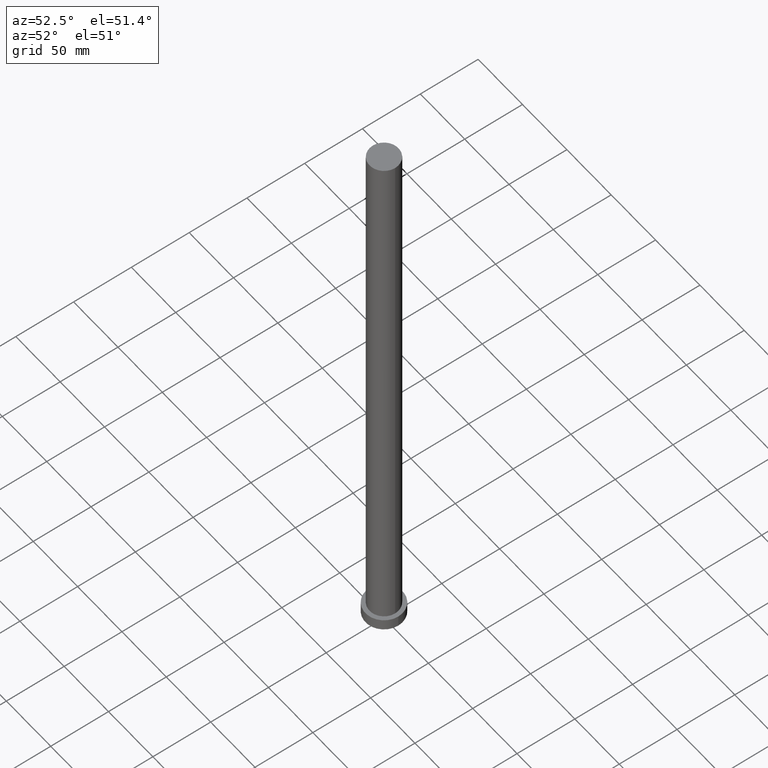
[diagram: clean part render]
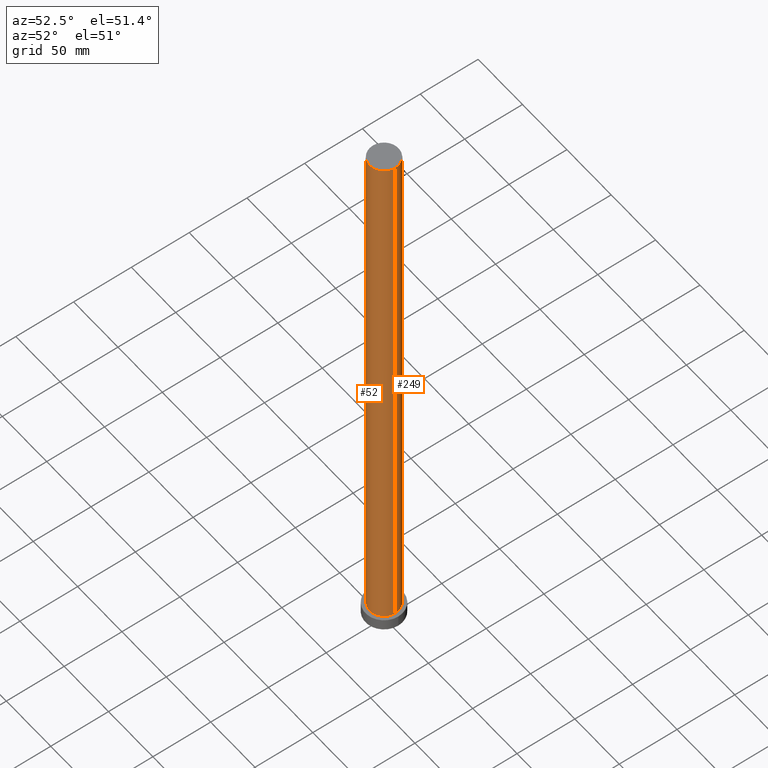
[diagram: same view with one multi-face feature highlighted, each face labeled with its STEP entity id]
A machine part, auxiliary view. The highlighted faces form ONE feature: a constant-radius fillet chain: 2 tangent blend faces with common blend radius 12.5 mm. The faces share edges in the B-rep.
Their STEP definitions:
[1] entity #52 (Cylinder):
#10 = AXIS2_PLACEMENT_3D ( 'NONE', #244, #221, #129 ) ;
#13 = EDGE_CURVE ( 'NONE', #17, #38, #29, .T. ) ;
#15 = ORIENTED_EDGE ( 'NONE', *, *, #121, .F. ) ;
#17 = VERTEX_POINT ( 'NONE', #146 ) ;
#19 = DIRECTION ( 'NONE',  ( -0.000000000000000000, -0.000000000000000000, -1.000000000000000000 ) ) ;
#21 = FACE_OUTER_BOUND ( 'NONE', #27, .T. ) ;
#27 = EDGE_LOOP ( 'NONE', ( #209, #15, #103, #149 ) ) ;
#29 = CIRCLE ( 'NONE', #10, 12.50000000000000000 ) ;
#38 = VERTEX_POINT ( 'NONE', #229 ) ;
#44 = CARTESIAN_POINT ( 'NONE',  ( 12.50000000000000000, 1.530808498934191521E-15, 500.0000000000000000 ) ) ;
#47 = AXIS2_PLACEMENT_3D ( 'NONE', #83, #19, #163 ) ;
#52 = ADVANCED_FACE ( 'NONE', ( #21 ), #212, .T. ) ;
#55 = EDGE_CURVE ( 'NONE', #148, #17, #220, .T. ) ;
#62 = LINE ( 'NONE', #44, #145 ) ;
#80 = AXIS2_PLACEMENT_3D ( 'NONE', #162, #195, #230 ) ;
#83 = CARTESIAN_POINT ( 'NONE',  ( 0.000000000000000000, 0.000000000000000000, 500.0000000000000000 ) ) ;
#85 = CARTESIAN_POINT ( 'NONE',  ( -12.50000000000000000, 0.000000000000000000, 500.0000000000000000 ) ) ;
#103 = ORIENTED_EDGE ( 'NONE', *, *, #55, .T. ) ;
#110 = CARTESIAN_POINT ( 'NONE',  ( 12.50000000000000000, 1.530808498934191521E-15, 500.0000000000000000 ) ) ;
#121 = EDGE_CURVE ( 'NONE', #148, #152, #160, .T. ) ;
#129 = DIRECTION ( 'NONE',  ( 1.000000000000000000, 0.000000000000000000, 0.000000000000000000 ) ) ;
#139 = EDGE_CURVE ( 'NONE', #152, #38, #62, .T. ) ;
#145 = VECTOR ( 'NONE', #252, 1000.000000000000000 ) ;
#146 = CARTESIAN_POINT ( 'NONE',  ( -12.50000000000000000, 0.000000000000000000, 10.00000000000000000 ) ) ;
#148 = VERTEX_POINT ( 'NONE', #159 ) ;
#149 = ORIENTED_EDGE ( 'NONE', *, *, #13, .T. ) ;
#151 = VECTOR ( 'NONE', #198, 1000.000000000000000 ) ;
#152 = VERTEX_POINT ( 'NONE', #110 ) ;
#159 = CARTESIAN_POINT ( 'NONE',  ( -12.50000000000000000, 0.000000000000000000, 500.0000000000000000 ) ) ;
#160 = CIRCLE ( 'NONE', #80, 12.50000000000000000 ) ;
#162 = CARTESIAN_POINT ( 'NONE',  ( 0.000000000000000000, 0.000000000000000000, 500.0000000000000000 ) ) ;
#163 = DIRECTION ( 'NONE',  ( -1.000000000000000000, 0.000000000000000000, 0.000000000000000000 ) ) ;
#195 = DIRECTION ( 'NONE',  ( 0.000000000000000000, 0.000000000000000000, 1.000000000000000000 ) ) ;
#198 = DIRECTION ( 'NONE',  ( -0.000000000000000000, -0.000000000000000000, -1.000000000000000000 ) ) ;
#209 = ORIENTED_EDGE ( 'NONE', *, *, #139, .F. ) ;
#212 = CYLINDRICAL_SURFACE ( 'NONE', #47, 12.50000000000000000 ) ;
#220 = LINE ( 'NONE', #85, #151 ) ;
#221 = DIRECTION ( 'NONE',  ( 0.000000000000000000, 0.000000000000000000, 1.000000000000000000 ) ) ;
#229 = CARTESIAN_POINT ( 'NONE',  ( 12.50000000000000000, 1.530808498934191521E-15, 10.00000000000000000 ) ) ;
#230 = DIRECTION ( 'NONE',  ( 1.000000000000000000, 0.000000000000000000, 0.000000000000000000 ) ) ;
#244 = CARTESIAN_POINT ( 'NONE',  ( 0.000000000000000000, 0.000000000000000000, 10.00000000000000000 ) ) ;
#252 = DIRECTION ( 'NONE',  ( -0.000000000000000000, -0.000000000000000000, -1.000000000000000000 ) ) ;
[2] entity #249 (Cylinder):
#4 = CARTESIAN_POINT ( 'NONE',  ( 0.000000000000000000, 0.000000000000000000, 500.0000000000000000 ) ) ;
#14 = AXIS2_PLACEMENT_3D ( 'NONE', #94, #106, #115 ) ;
#17 = VERTEX_POINT ( 'NONE', #146 ) ;
#26 = DIRECTION ( 'NONE',  ( -0.000000000000000000, -0.000000000000000000, -1.000000000000000000 ) ) ;
#38 = VERTEX_POINT ( 'NONE', #229 ) ;
#43 = AXIS2_PLACEMENT_3D ( 'NONE', #143, #197, #233 ) ;
#44 = CARTESIAN_POINT ( 'NONE',  ( 12.50000000000000000, 1.530808498934191521E-15, 500.0000000000000000 ) ) ;
#55 = EDGE_CURVE ( 'NONE', #148, #17, #220, .T. ) ;
#58 = CIRCLE ( 'NONE', #14, 12.50000000000000000 ) ;
#62 = LINE ( 'NONE', #44, #145 ) ;
#70 = EDGE_LOOP ( 'NONE', ( #92, #135, #118, #251 ) ) ;
#85 = CARTESIAN_POINT ( 'NONE',  ( -12.50000000000000000, 0.000000000000000000, 500.0000000000000000 ) ) ;
#92 = ORIENTED_EDGE ( 'NONE', *, *, #161, .F. ) ;
#94 = CARTESIAN_POINT ( 'NONE',  ( 0.000000000000000000, 0.000000000000000000, 10.00000000000000000 ) ) ;
#106 = DIRECTION ( 'NONE',  ( 0.000000000000000000, 0.000000000000000000, 1.000000000000000000 ) ) ;
#107 = CIRCLE ( 'NONE', #43, 12.50000000000000000 ) ;
#110 = CARTESIAN_POINT ( 'NONE',  ( 12.50000000000000000, 1.530808498934191521E-15, 500.0000000000000000 ) ) ;
#115 = DIRECTION ( 'NONE',  ( 1.000000000000000000, 0.000000000000000000, 0.000000000000000000 ) ) ;
#118 = ORIENTED_EDGE ( 'NONE', *, *, #255, .T. ) ;
#135 = ORIENTED_EDGE ( 'NONE', *, *, #139, .T. ) ;
#139 = EDGE_CURVE ( 'NONE', #152, #38, #62, .T. ) ;
#143 = CARTESIAN_POINT ( 'NONE',  ( 0.000000000000000000, 0.000000000000000000, 500.0000000000000000 ) ) ;
#144 = CYLINDRICAL_SURFACE ( 'NONE', #167, 12.50000000000000000 ) ;
#145 = VECTOR ( 'NONE', #252, 1000.000000000000000 ) ;
#146 = CARTESIAN_POINT ( 'NONE',  ( -12.50000000000000000, 0.000000000000000000, 10.00000000000000000 ) ) ;
#148 = VERTEX_POINT ( 'NONE', #159 ) ;
#151 = VECTOR ( 'NONE', #198, 1000.000000000000000 ) ;
#152 = VERTEX_POINT ( 'NONE', #110 ) ;
#159 = CARTESIAN_POINT ( 'NONE',  ( -12.50000000000000000, 0.000000000000000000, 500.0000000000000000 ) ) ;
#161 = EDGE_CURVE ( 'NONE', #152, #148, #107, .T. ) ;
#167 = AXIS2_PLACEMENT_3D ( 'NONE', #4, #26, #183 ) ;
#183 = DIRECTION ( 'NONE',  ( -1.000000000000000000, 0.000000000000000000, 0.000000000000000000 ) ) ;
#197 = DIRECTION ( 'NONE',  ( 0.000000000000000000, 0.000000000000000000, 1.000000000000000000 ) ) ;
#198 = DIRECTION ( 'NONE',  ( -0.000000000000000000, -0.000000000000000000, -1.000000000000000000 ) ) ;
#218 = FACE_OUTER_BOUND ( 'NONE', #70, .T. ) ;
#220 = LINE ( 'NONE', #85, #151 ) ;
#229 = CARTESIAN_POINT ( 'NONE',  ( 12.50000000000000000, 1.530808498934191521E-15, 10.00000000000000000 ) ) ;
#233 = DIRECTION ( 'NONE',  ( 1.000000000000000000, 0.000000000000000000, 0.000000000000000000 ) ) ;
#249 = ADVANCED_FACE ( 'NONE', ( #218 ), #144, .T. ) ;
#251 = ORIENTED_EDGE ( 'NONE', *, *, #55, .F. ) ;
#252 = DIRECTION ( 'NONE',  ( -0.000000000000000000, -0.000000000000000000, -1.000000000000000000 ) ) ;
#255 = EDGE_CURVE ( 'NONE', #38, #17, #58, .T. ) ;